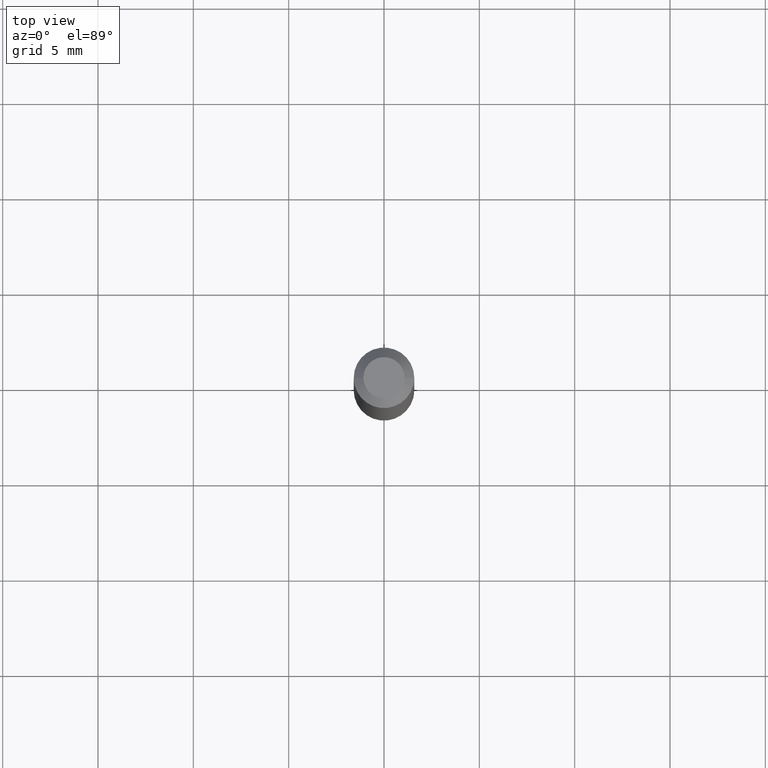
[diagram: clean part render]
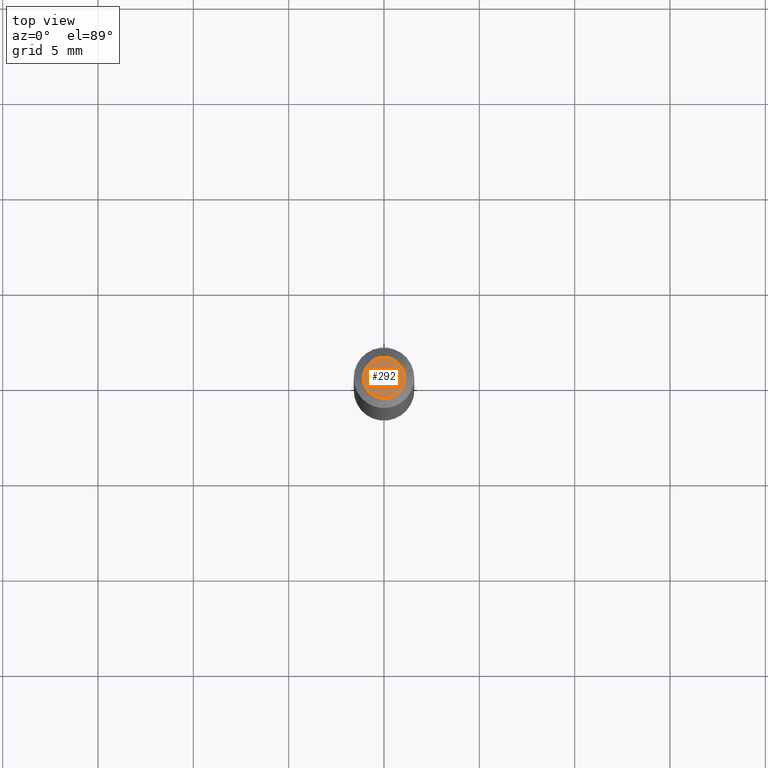
[diagram: same view with one face highlighted and labeled with its STEP entity id]
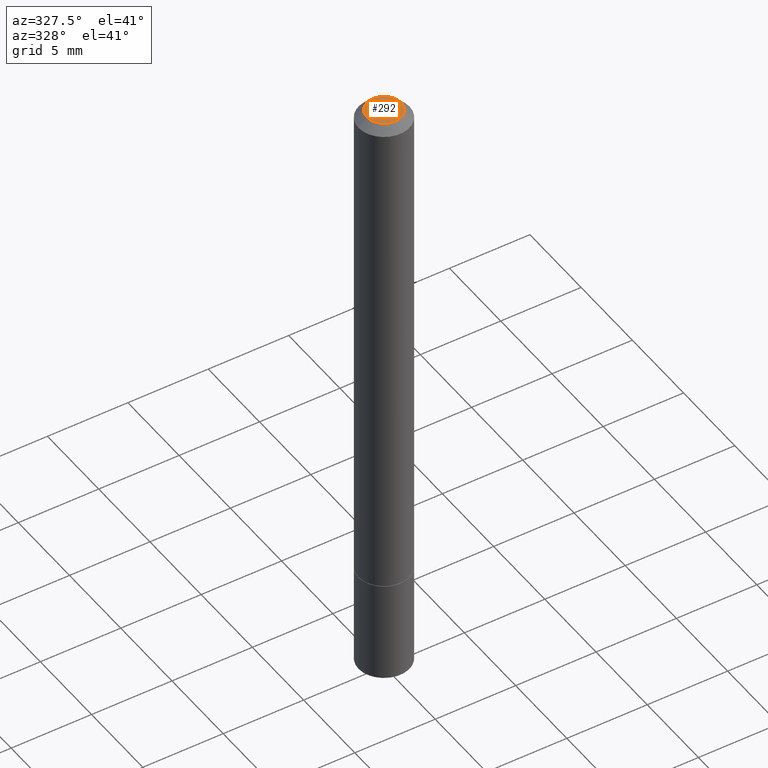
[diagram: same view with one face highlighted and labeled with its STEP entity id]
A machine part, top view. The second image highlights one B-rep face of the part: STEP entity #292.
A second angle (auxiliary view) of the same face is appended — the face is thin or edge-on in the first view.
In plain terms, the highlighted planar face has unit normal (0, -0, -1).
Its self-contained STEP definition (entity closure, byte-faithful):
#3 = CARTESIAN_POINT ( 'NONE',  ( 9.394662729016977403E-46, -1.341308853342402453E-31, -3.841661241090370459E-17 ) ) ;
#5 = ORIENTED_EDGE ( 'NONE', *, *, #173, .T. ) ;
#10 = DIRECTION ( 'NONE',  ( 1.000000000000000000, -6.982962677686267499E-15, 4.870577812114081924E-29 ) ) ;
#23 = CARTESIAN_POINT ( 'NONE',  ( -0.04250000000000002387, 3.316907271900973138E-16, -3.841661241090589861E-17 ) ) ;
#24 = AXIS2_PLACEMENT_3D ( 'NONE', #3, #224, #137 ) ;
#51 = ORIENTED_EDGE ( 'NONE', *, *, #69, .T. ) ;
#62 = VERTEX_POINT ( 'NONE', #308 ) ;
#67 = EDGE_LOOP ( 'NONE', ( #51, #5 ) ) ;
#69 = EDGE_CURVE ( 'NONE', #301, #62, #225, .T. ) ;
#90 = FACE_OUTER_BOUND ( 'NONE', #67, .T. ) ;
#96 = DIRECTION ( 'NONE',  ( 2.438088387897960049E-29, -3.491481338843145188E-15, -1.000000000000000000 ) ) ;
#124 = AXIS2_PLACEMENT_3D ( 'NONE', #148, #260, #10 ) ;
#137 = DIRECTION ( 'NONE',  ( 1.000000000000000000, -6.982962677686267499E-15, 4.870577812114081924E-29 ) ) ;
#148 = CARTESIAN_POINT ( 'NONE',  ( 9.394662729016977403E-46, -1.341308853342402453E-31, -3.841661241090370459E-17 ) ) ;
#155 = CARTESIAN_POINT ( 'NONE',  ( 2.967759138016664535E-16, 0.04250000000000002387, -1.675962631062856399E-16 ) ) ;
#165 = DIRECTION ( 'NONE',  ( -1.000000000000000000, 6.982962677686265922E-15, -4.876176775795935793E-29 ) ) ;
#173 = EDGE_CURVE ( 'NONE', #62, #301, #290, .T. ) ;
#185 = PLANE ( 'NONE',  #263 ) ;
#224 = DIRECTION ( 'NONE',  ( -2.445468806185136597E-29, 3.491481338843145583E-15, 1.000000000000000000 ) ) ;
#225 = CIRCLE ( 'NONE', #24, 0.04250000000000002387 ) ;
#260 = DIRECTION ( 'NONE',  ( -2.445468806185136597E-29, 3.491481338843145583E-15, 1.000000000000000000 ) ) ;
#263 = AXIS2_PLACEMENT_3D ( 'NONE', #155, #96, #165 ) ;
#290 = CIRCLE ( 'NONE', #124, 0.04250000000000002387 ) ;
#292 = ADVANCED_FACE ( 'NONE', ( #90 ), #185, .F. ) ;
#301 = VERTEX_POINT ( 'NONE', #23 ) ;
#308 = CARTESIAN_POINT ( 'NONE',  ( 0.04250000000000002387, -3.950909582714369417E-16, -3.841661241090128254E-17 ) ) ;